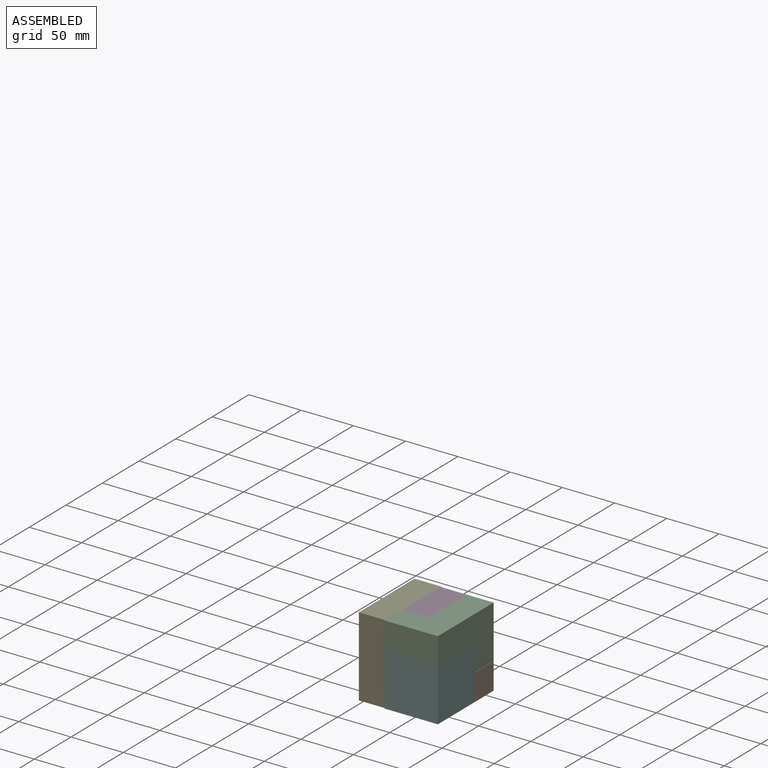
[diagram: assembled view]
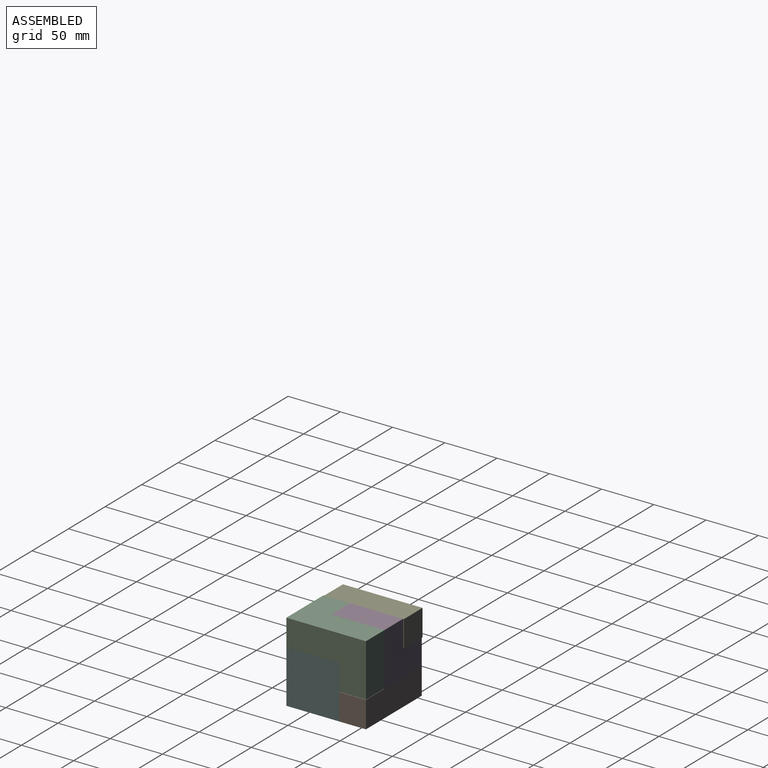
[diagram: assembled view, second angle]
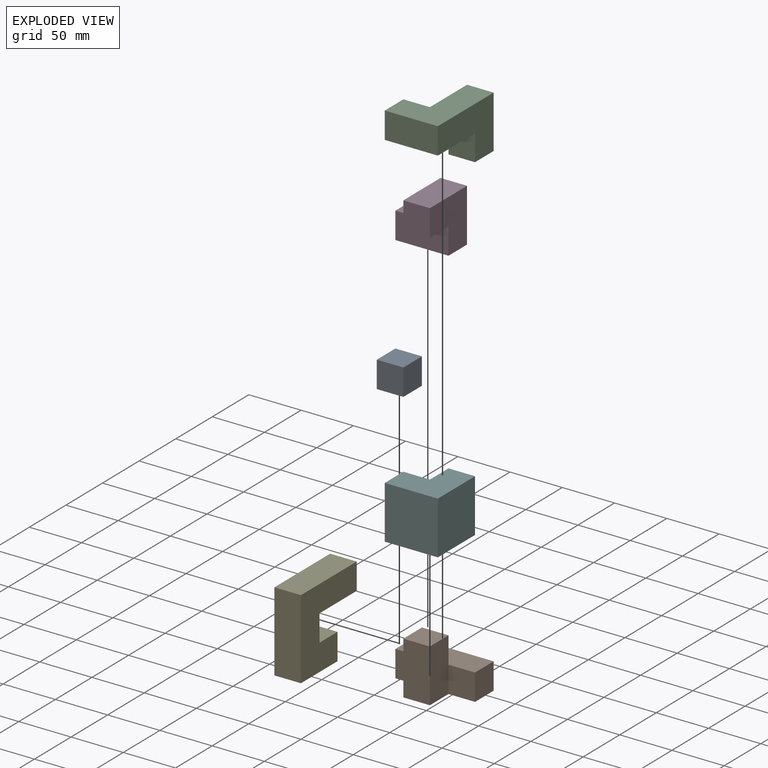
[diagram: exploded view]
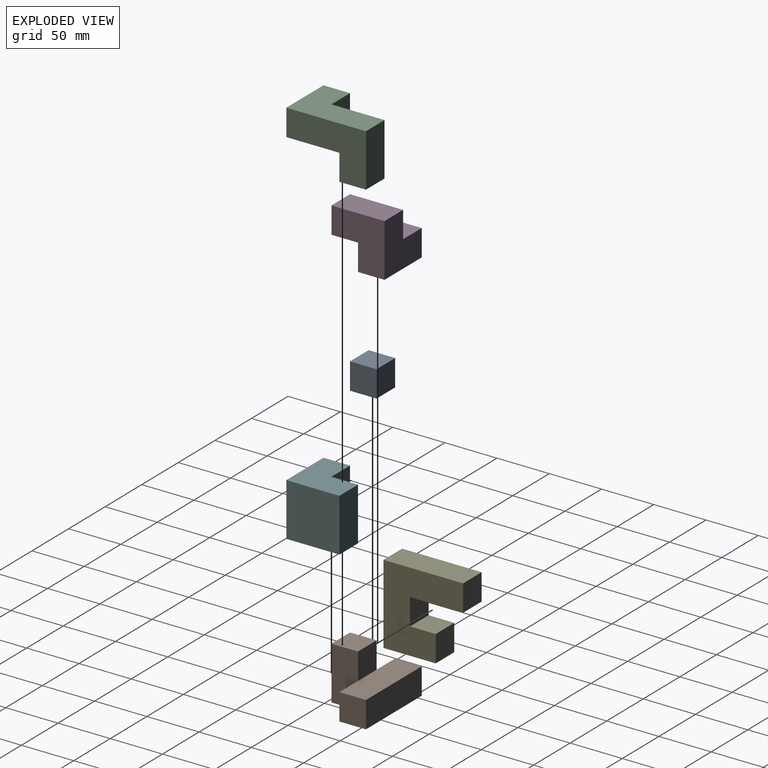
[diagram: exploded view, second angle]
ASSEMBLY  parts=6 mates=5
PART A: 6 faces, bbox 25.4x25.4x25.4 mm
  f0: plane 25.4x25.4mm, normal (-1,0,0), area 645.2mm2, adj f1,f3,f4,f5
  f1: plane 25.4x25.4mm, normal (0,0,-1), area 645.2mm2, adj f0,f2,f4,f5
  f2: plane 25.4x25.4mm, normal (1,0,0), area 645.2mm2, adj f1,f3,f4,f5
  f3: plane 25.4x25.4mm, normal (0,0,1), area 645.2mm2, adj f0,f2,f4,f5
  f4: plane 25.4x25.4mm, normal (0,-1,0), area 645.2mm2, adj f0,f1,f2,f3
  f5: plane 25.4x25.4mm, normal (0,1,0), area 645.2mm2, adj f0,f1,f2,f3
PART B: 12 faces, bbox 76.2x50.8x50.8 mm
  f0: plane 76.2x25.4mm, normal (0,0,1), area 1935.5mm2, adj f1,f2,f4,f5,f6,f10
  f1: plane 25.4x25.4mm, normal (0,-1,0), area 645.2mm2, adj f0,f3,f6,f7
  f2: plane 25.4x25.4mm, normal (0,-1,0), area 645.2mm2, adj f0,f3,f5,f8
  f3: plane 76.2x50.8mm, normal (0,0,-1), area 2580.6mm2, adj f1,f2,f4,f5,f6,f7,f8,f9
  f4: plane 76.2x25.4mm, normal (0,1,0), area 1935.5mm2, adj f0,f3,f5,f6
  f5: plane 25.4x25.4mm, normal (1,0,0), area 645.2mm2, adj f0,f2,f3,f4
  f6: plane 25.4x25.4mm, normal (-1,0,0), area 645.2mm2, adj f0,f1,f3,f4
  f7: plane 50.8x25.4mm, normal (-1,0,0), area 1290.3mm2, adj f1,f3,f9,f10,f11
  f8: plane 50.8x25.4mm, normal (1,0,0), area 1290.3mm2, adj f2,f3,f9,f10,f11
  f9: plane 50.8x25.4mm, normal (0,-1,0), area 1290.3mm2, adj f3,f7,f8,f11
  f10: plane 25.4x25.4mm, normal (0,1,0), area 645.2mm2, adj f0,f7,f8,f11
  f11: plane 25.4x25.4mm, normal (0,0,1), area 645.2mm2, adj f7,f8,f9,f10
PART C: 10 faces, bbox 76.2x50.5x50.8 mm
  f0: plane 50.8x50.52mm, normal (0,0,1), area 1928.3mm2, adj f1,f2,f5,f6,f7,f8
  f1: plane 50.8x50.8mm, normal (0,-1,0), area 1935.5mm2, adj f0,f3,f4,f7,f8,f9
  f2: plane 50.52x25.4mm, normal (-1,0,0), area 1283.1mm2, adj f0,f3,f5,f6
  f3: plane 76.2x50.52mm, normal (0,0,-1), area 2573.4mm2, adj f1,f2,f4,f5,f6,f7
  f4: plane 50.8x25.4mm, normal (1,0,0), area 1290.3mm2, adj f1,f3,f5,f9
  f5: plane 76.2x50.8mm, normal (0,1,0), area 2580.6mm2, adj f0,f2,f3,f4,f8,f9
  f6: plane 25.4x25.4mm, normal (0,-1,0), area 645.2mm2, adj f0,f2,f3,f7
  f7: plane 25.4x25.12mm, normal (1,0,0), area 638mm2, adj f0,f1,f3,f6
  f8: plane 25.4x25.4mm, normal (-1,0,0), area 645.2mm2, adj f0,f1,f5,f9
  f9: plane 25.4x25.4mm, normal (0,0,1), area 645.2mm2, adj f1,f4,f5,f8
PART D: 10 faces, bbox 50.8x50.8x50.8 mm
  f0: plane 25.4x25.4mm, normal (0,0,1), area 645.2mm2, adj f1,f4,f5,f6
  f1: plane 25.4x25.4mm, normal (-1,0,0), area 645.2mm2, adj f0,f2,f4,f5
  f2: plane 50.8x25.4mm, normal (0,0,-1), area 1290.3mm2, adj f1,f3,f4,f5
  f3: plane 50.8x50.8mm, normal (1,0,0), area 1935.5mm2, adj f2,f4,f5,f7,f8,f9
  f4: plane 50.8x25.4mm, normal (0,-1,0), area 1290.3mm2, adj f0,f1,f2,f3,f8
  f5: plane 50.8x50.8mm, normal (0,1,0), area 1935.5mm2, adj f0,f1,f2,f3,f6,f7
  f6: plane 50.8x25.4mm, normal (-1,0,0), area 1290.3mm2, adj f0,f5,f7,f8,f9
  f7: plane 50.8x25.4mm, normal (0,0,1), area 1290.3mm2, adj f3,f5,f6,f9
  f8: plane 25.4x25.4mm, normal (0,0,-1), area 645.2mm2, adj f3,f4,f6,f9
  f9: plane 25.4x25.4mm, normal (0,-1,0), area 645.2mm2, adj f3,f6,f7,f8
PART E: 10 faces, bbox 76.2x25.4x76.2 mm
  f0: plane 25.4x25.4mm, normal (0,0,1), area 645.2mm2, adj f4,f5,f6,f8
  f1: plane 49.97x25.4mm, normal (-1,0,0), area 1269.3mm2, adj f2,f4,f5,f7
  f2: plane 76.2x25.4mm, normal (0,0,-1), area 1935.5mm2, adj f1,f3,f4,f5
  f3: plane 76.2x25.4mm, normal (1,0,0), area 1935.5mm2, adj f2,f4,f5,f9
  f4: plane 76.2x76.2mm, normal (0,-1,0), area 3849.9mm2, adj f0,f1,f2,f3,f6,f7,f8,f9
  f5: plane 76.2x76.2mm, normal (0,1,0), area 3849.9mm2, adj f0,f1,f2,f3,f6,f7,f8,f9
  f6: plane 25.4x24.57mm, normal (1,0,0), area 624.1mm2, adj f0,f4,f5,f7
  f7: plane 25.4x25.4mm, normal (0,0,1), area 645.2mm2, adj f1,f4,f5,f6
  f8: plane 50.8x25.4mm, normal (-1,0,0), area 1290.3mm2, adj f0,f4,f5,f9
  f9: plane 25.4x25.4mm, normal (0,0,1), area 645.2mm2, adj f3,f4,f5,f8
PART F: 8 faces, bbox 50.8x50.8x50.8 mm
  f0: plane 50.8x50.8mm, normal (0,-1,0), area 2580.6mm2, adj f3,f4,f5,f6
  f1: plane 50.8x25.4mm, normal (1,0,0), area 1290.3mm2, adj f2,f4,f5,f7
  f2: plane 50.8x25.4mm, normal (0,1,0), area 1290.3mm2, adj f1,f3,f4,f5
  f3: plane 50.8x50.8mm, normal (-1,0,0), area 2580.6mm2, adj f0,f2,f4,f5
  f4: plane 50.8x50.8mm, normal (0,0,1), area 1935.5mm2, adj f0,f1,f2,f3,f6,f7
  f5: plane 50.8x50.8mm, normal (0,0,-1), area 1935.5mm2, adj f0,f1,f2,f3,f6,f7
  f6: plane 50.8x25.4mm, normal (1,0,0), area 1290.3mm2, adj f0,f4,f5,f7
  f7: plane 50.8x25.4mm, normal (0,1,0), area 1290.3mm2, adj f1,f4,f5,f6
PLACE A t=(-51.66,-18.52,39.11)mm
PLACE B t=(-51.66,-18.52,13.71)mm
PLACE C rot(axis=(0.58,-0.58,-0.58),120deg) t=(24.54,6.88,89.91)mm
PLACE D t=(-52.53,6.88,39.41)mm
PLACE E rot(axis=(-0.58,-0.58,-0.58),120deg) t=(-26.26,-68.49,13.71)mm
PLACE F rot(axis=(0,0,1),90deg) t=(24.54,-43.92,13.71)mm
MATE revolute E.f5 <-> B.f7  axis (1,0,0) through (-26.26,-18.52,39.11)mm
MATE revolute F.f5 <-> B.f3  axis (0,0,1) through (24.54,-18.52,13.71)mm
MATE revolute C.f1 <-> F.f4  axis (0,0,1) through (24.54,-18.52,64.51)mm
MATE revolute D.f8 <-> B.f11  axis (0,0,1) through (-0.86,-43.92,64.51)mm
MATE revolute B.f11 <-> A.f3  axis (0,0,1) through (-26.26,-18.52,64.51)mm
